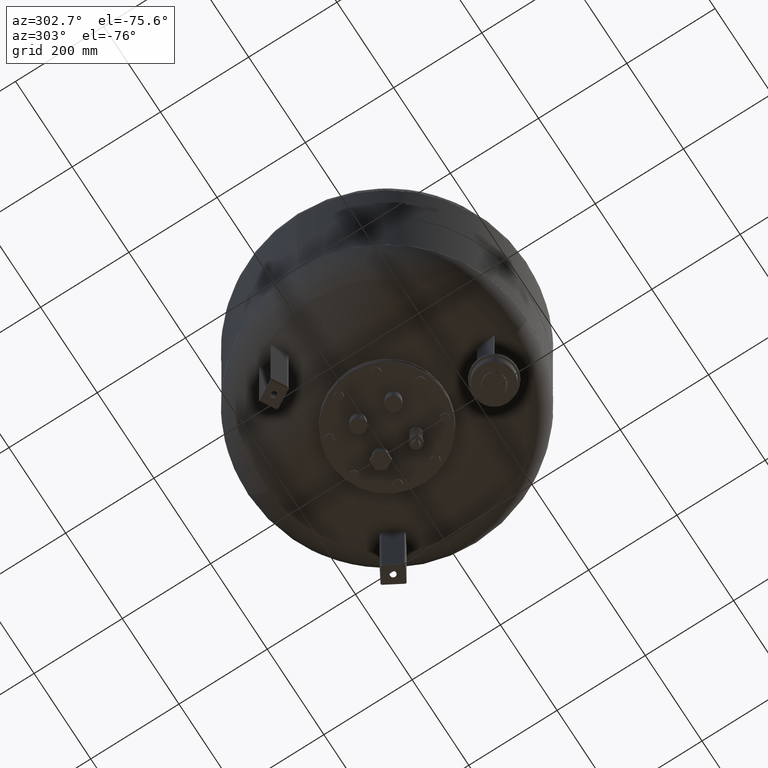
[diagram: clean part render]
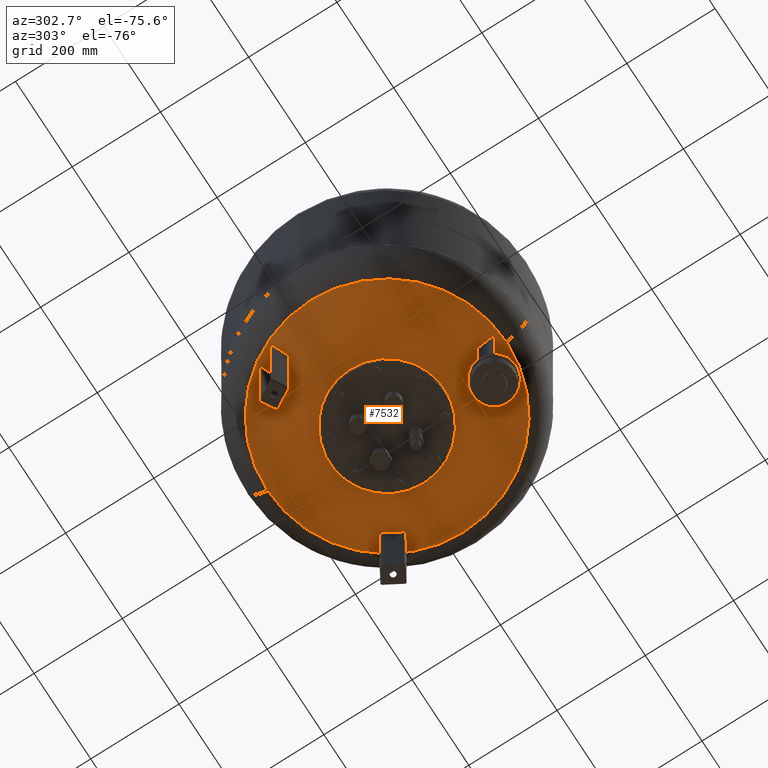
[diagram: same view with one face highlighted and labeled with its STEP entity id]
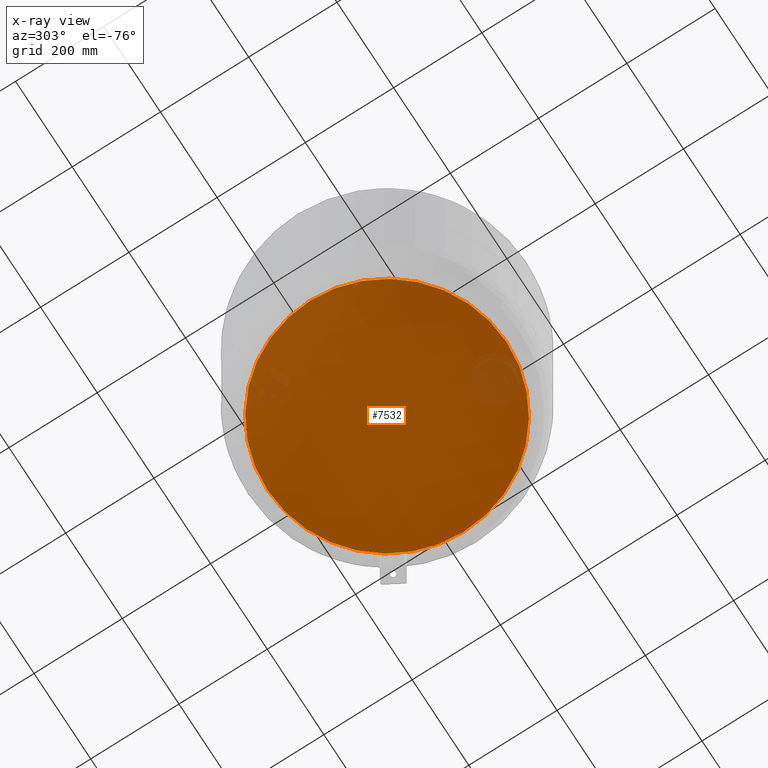
[diagram: x-ray of the same camera — body ghosted, the highlighted face saturated]
A machine part, auxiliary view. The second image highlights one B-rep face of the part: STEP entity #7532.
The next image is the same camera in x-ray: the body ghosted, the highlighted face saturated — about 5% of this face is hidden behind the body in this view.
In plain terms, the highlighted spherical surface has radius 509 mm.
Its self-contained STEP definition (entity closure, byte-faithful):
#7471=CARTESIAN_POINT('',(8.065826E-015,-270.639024390243830,267.913560318702370));
#7472=VERTEX_POINT('',#7471);
#7488=CARTESIAN_POINT('',(-2.507680E-014,270.639024390243830,267.913560318702480));
#7489=VERTEX_POINT('',#7488);
#7497=CARTESIAN_POINT('',(-270.639024390243830,-1.431249E-014,267.913560318702420));
#7498=VERTEX_POINT('',#7497);
#7499=CARTESIAN_POINT('',(-7.495146E-015,-1.431249E-014,267.913560318702420));
#7500=DIRECTION('',(0.0,0.0,1.0));
#7501=DIRECTION('',(-1.0,0.0,0.0));
#7502=AXIS2_PLACEMENT_3D('',#7499,#7500,#7501);
#7503=CIRCLE('',#7502,270.639024390243830);
#7504=EDGE_CURVE('',#7489,#7498,#7503,.T.);
#7506=CARTESIAN_POINT('',(-7.495146E-015,-1.431249E-014,267.913560318702420));
#7507=DIRECTION('',(0.0,0.0,1.0));
#7508=DIRECTION('',(-1.0,0.0,0.0));
#7509=AXIS2_PLACEMENT_3D('',#7506,#7507,#7508);
#7510=CIRCLE('',#7509,270.639024390243830);
#7511=EDGE_CURVE('',#7498,#7472,#7510,.T.);
#7516=CARTESIAN_POINT('',(-1.005746E-013,-9.350178E-014,699.0));
#7517=DIRECTION('',(0.0,-1.0,0.0));
#7518=DIRECTION('',(1.0,0.0,0.0));
#7519=AXIS2_PLACEMENT_3D('',#7516,#7517,#7518);
#7520=SPHERICAL_SURFACE('',#7519,509.000000000000060);
#7521=ORIENTED_EDGE('',*,*,#7511,.F.);
#7522=ORIENTED_EDGE('',*,*,#7504,.F.);
#7523=CARTESIAN_POINT('',(-7.495146E-015,-1.431249E-014,267.913560318702420));
#7524=DIRECTION('',(0.0,0.0,1.0));
#7525=DIRECTION('',(-1.0,0.0,0.0));
#7526=AXIS2_PLACEMENT_3D('',#7523,#7524,#7525);
#7527=CIRCLE('',#7526,270.639024390243830);
#7528=EDGE_CURVE('',#7472,#7489,#7527,.T.);
#7529=ORIENTED_EDGE('',*,*,#7528,.F.);
#7530=EDGE_LOOP('',(#7521,#7522,#7529));
#7531=FACE_OUTER_BOUND('',#7530,.T.);
#7532=ADVANCED_FACE('',(#7531),#7520,.T.);